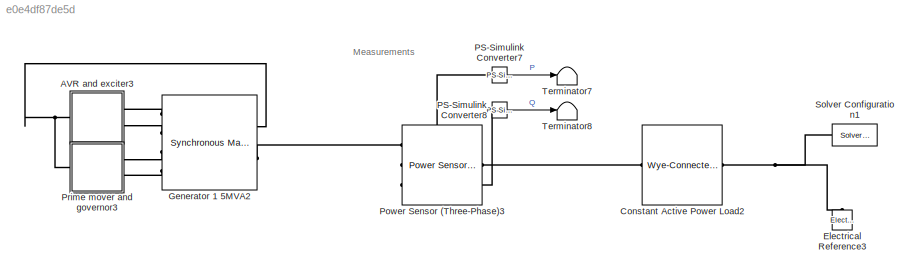
MODEL slx_e0e4df87de5d
KIND model
CONFIG AbsTol = auto
CONFIG EnableMultiTasking = off
CONFIG FixedStep = auto
CONFIG MaxStep = auto
CONFIG MinStep = auto
CONFIG RelTol = 1e-3
CONFIG SampleTimeConstraint = Unconstrained
CONFIG SolverName = VariableStepAuto
CONFIG StartTime = 0.1
CONFIG StopTime = 50
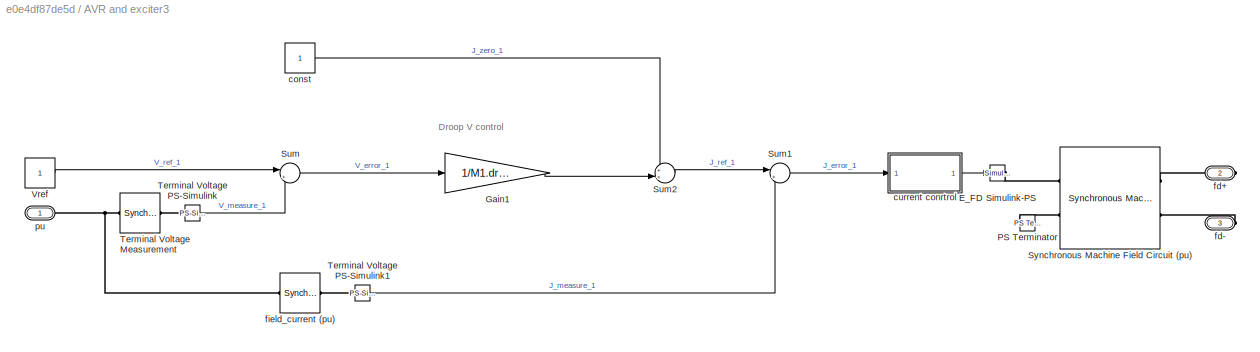
BLOCK [SubSystem] AVR and exciter3
  NameLocation = top
  Ports = [0, 0, 0, 0, 0, 1, 2]
BLOCK [Reference] AVR and exciter3/E_FD Simulink-PS   REF=nesl_utility/Simulink-PS
Converter
  Ports = [1, 0, 0, 0, 0, 0, 1]
  SourceBlock = nesl_utility/Simulink-PS\nConverter
  SourceType = Simulink-PS\nConverter
BLOCK [Gain] AVR and exciter3/Gain1
  Gain = 1/M1.droopV1
BLOCK [Reference] AVR and exciter3/PS Terminator  REF=fl_lib/Physical Signals/Sinks/PS Terminator
  NameLocation = top
  Ports = [0, 0, 0, 0, 0, 1]
  SourceBlock = fl_lib/Physical Signals/Sinks/PS Terminator
  SourceType = PS Terminator
BLOCK [Sum] AVR and exciter3/Sum
  Inputs = |+-
  Ports = [2, 1]
BLOCK [Sum] AVR and exciter3/Sum1
  Inputs = |+-
  Ports = [2, 1]
BLOCK [Sum] AVR and exciter3/Sum2
  Inputs = ++|
  Ports = [2, 1]
BLOCK [Reference] AVR and exciter3/Synchronous Machine Field Circuit (pu)  REF=ee_lib/Electromechanical/Synchronous/Synchronous Machine
Field Circuit
  Ports = [0, 0, 0, 0, 0, 2, 2]
  SourceBlock = ee_lib/Electromechanical/Synchronous/Synchronous Machine\nField Circuit
  SourceType = Synchronous Machine\nField Circuit
BLOCK [Reference] AVR and exciter3/Terminal Voltage Measurement  REF=ee_lib/Electromechanical/Synchronous/Synchronous Machine
Measurement
  Ports = [0, 0, 0, 0, 0, 1, 1]
  SourceBlock = ee_lib/Electromechanical/Synchronous/Synchronous Machine\nMeasurement
  SourceType = Synchronous Machine\nMeasurement
BLOCK [Reference] AVR and exciter3/Terminal Voltage PS-Simulink  REF=nesl_utility/PS-Simulink
Converter
  Ports = [0, 1, 0, 0, 0, 1]
  SourceBlock = nesl_utility/PS-Simulink\nConverter
  SourceType = PS-Simulink\nConverter
BLOCK [Reference] AVR and exciter3/Terminal Voltage PS-Simulink1  REF=nesl_utility/PS-Simulink
Converter
  Ports = [0, 1, 0, 0, 0, 1]
  SourceBlock = nesl_utility/PS-Simulink\nConverter
  SourceType = PS-Simulink\nConverter
BLOCK [Constant] AVR and exciter3/Vref
  NameLocation = top
BLOCK [Constant] AVR and exciter3/const
  NameLocation = top
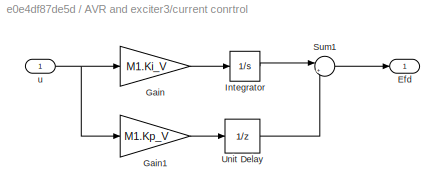
BLOCK [SubSystem] AVR and exciter3/current conrtrol
  Ports = [1, 1]
BLOCK [Outport] AVR and exciter3/current conrtrol/Efd
BLOCK [Gain] AVR and exciter3/current conrtrol/Gain
  Gain = M1.Ki_V
BLOCK [Gain] AVR and exciter3/current conrtrol/Gain1
  Gain = M1.Kp_V
BLOCK [Integrator] AVR and exciter3/current conrtrol/Integrator
  Ports = [1, 1]
BLOCK [Sum] AVR and exciter3/current conrtrol/Sum1
  Inputs = |++
  Ports = [2, 1]
BLOCK [UnitDelay] AVR and exciter3/current conrtrol/Unit Delay
  HasFrameUpgradeWarning = on
  InitialCondition = 1
  SampleTime = -1
BLOCK [Inport] AVR and exciter3/current conrtrol/u
BLOCK [PMIOPort] AVR and exciter3/fd+
  Port = 2
  Side = Right
BLOCK [PMIOPort] AVR and exciter3/fd-
  Port = 3
  Side = Right
BLOCK [Reference] AVR and exciter3/field_current (pu)  REF=ee_lib/Electromechanical/Synchronous/Synchronous Machine
Measurement
  Ports = [0, 0, 0, 0, 0, 1, 1]
  SourceBlock = ee_lib/Electromechanical/Synchronous/Synchronous Machine\nMeasurement
  SourceType = Synchronous Machine\nMeasurement
BLOCK [PMIOPort] AVR and exciter3/pu
  Side = Left
BLOCK [Reference] Constant Active Power Load2  REF=ee_lib/Passive/RLC Assemblies/Wye-Connected Load
  Ports = [0, 0, 0, 0, 0, 1, 1]
  SourceBlock = ee_lib/Passive/RLC Assemblies/Wye-Connected Load
  SourceType = Wye-Connected Load
BLOCK [Reference] Electrical Reference3  REF=fl_lib/Electrical/Electrical Elements/Electrical Reference
  NameLocation = right
  Ports = [0, 0, 0, 0, 0, 1]
  SourceBlock = fl_lib/Electrical/Electrical Elements/Electrical Reference
  SourceType = Electrical Reference
BLOCK [Reference] Generator 1 5MVA2  REF=ee_lib/Electromechanical/Synchronous/Synchronous Machine
Salient Pole
  Ports = [0, 0, 0, 0, 0, 4, 2]
  SourceBlock = ee_lib/Electromechanical/Synchronous/Synchronous Machine\nSalient Pole
  SourceType = Synchronous Machine\nSalient Pole
BLOCK [Reference] PS-Simulink Converter7  REF=nesl_utility/PS-Simulink
Converter
  Ports = [0, 1, 0, 0, 0, 1]
  SourceBlock = nesl_utility/PS-Simulink\nConverter
  SourceType = PS-Simulink\nConverter
BLOCK [Reference] PS-Simulink Converter8  REF=nesl_utility/PS-Simulink
Converter
  Ports = [0, 1, 0, 0, 0, 1]
  SourceBlock = nesl_utility/PS-Simulink\nConverter
  SourceType = PS-Simulink\nConverter
BLOCK [Reference] Power Sensor (Three-Phase)3  REF=ee_lib/Sensors &
Transducers/Power Sensor
(Three-Phase)
  Ports = [0, 0, 0, 0, 0, 3, 1]
  SourceBlock = ee_lib/Sensors &\nTransducers/Power Sensor\n(Three-Phase)
  SourceType = Power Sensor\n(Three-Phase)
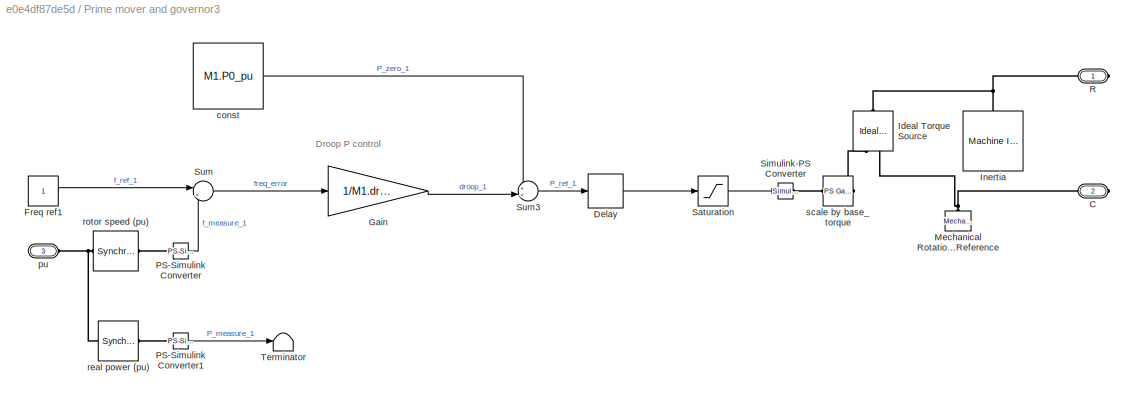
BLOCK [SubSystem] Prime mover and governor3
  Ports = [0, 0, 0, 0, 0, 1, 2]
BLOCK [PMIOPort] Prime mover and governor3/C
  Port = 2
  Side = Right
BLOCK [Delay] Prime mover and governor3/Delay
  DelayLength = 1
  InputPortMap = u0
  Ports = [1, 1]
BLOCK [Constant] Prime mover and governor3/Freq ref1
  NameLocation = top
BLOCK [Gain] Prime mover and governor3/Gain
  Gain = 1/M1.droopP1
BLOCK [Reference] Prime mover and governor3/Ideal Torque Source  REF=fl_lib/Mechanical/Mechanical Sources/Ideal Torque Source
  NameLocation = left
  Ports = [0, 0, 0, 0, 0, 1, 2]
  SourceBlock = fl_lib/Mechanical/Mechanical Sources/Ideal Torque Source
  SourceType = Ideal Torque Source
BLOCK [Reference] Prime mover and governor3/Inertia  REF=ee_lib/Electromechanical/Mechanical/Machine
Inertia
  NameLocation = right
  Ports = [0, 0, 0, 0, 0, 1]
  SourceBlock = ee_lib/Electromechanical/Mechanical/Machine\nInertia
  SourceType = Machine\nInertia
BLOCK [Reference] Prime mover and governor3/Mechanical Rotational Reference  REF=fl_lib/Mechanical/Rotational Elements/Mechanical
Rotational Reference
  NameLocation = right
  Ports = [0, 0, 0, 0, 0, 1]
  SourceBlock = fl_lib/Mechanical/Rotational Elements/Mechanical\nRotational Reference
  SourceType = Mechanical\nRotational Reference
BLOCK [Reference] Prime mover and governor3/PS-Simulink Converter  REF=nesl_utility/PS-Simulink
Converter
  Ports = [0, 1, 0, 0, 0, 1]
  SourceBlock = nesl_utility/PS-Simulink\nConverter
  SourceType = PS-Simulink\nConverter
BLOCK [Reference] Prime mover and governor3/PS-Simulink Converter1  REF=nesl_utility/PS-Simulink
Converter
  Ports = [0, 1, 0, 0, 0, 1]
  SourceBlock = nesl_utility/PS-Simulink\nConverter
  SourceType = PS-Simulink\nConverter
BLOCK [PMIOPort] Prime mover and governor3/R
  Side = Right
BLOCK [Saturate] Prime mover and governor3/Saturation
  LowerLimit = 0
  UpperLimit = 1
BLOCK [Reference] Prime mover and governor3/Simulink-PS Converter  REF=nesl_utility/Simulink-PS
Converter
  NameLocation = top
  Ports = [1, 0, 0, 0, 0, 0, 1]
  SourceBlock = nesl_utility/Simulink-PS\nConverter
  SourceType = Simulink-PS\nConverter
BLOCK [Sum] Prime mover and governor3/Sum
  Inputs = |+-
  NameLocation = top
  Ports = [2, 1]
BLOCK [Sum] Prime mover and governor3/Sum3
  Inputs = ++|
  Ports = [2, 1]
BLOCK [Terminator] Prime mover and governor3/Terminator
BLOCK [Constant] Prime mover and governor3/const
  NameLocation = top
  Value = M1.P0_pu
BLOCK [PMIOPort] Prime mover and governor3/pu
  Port = 3
  Side = Left
BLOCK [Reference] Prime mover and governor3/real power (pu)  REF=ee_lib/Electromechanical/Synchronous/Synchronous Machine
Measurement
  Ports = [0, 0, 0, 0, 0, 1, 1]
  SourceBlock = ee_lib/Electromechanical/Synchronous/Synchronous Machine\nMeasurement
  SourceType = Synchronous Machine\nMeasurement
BLOCK [Reference] Prime mover and governor3/rotor speed (pu)  REF=ee_lib/Electromechanical/Synchronous/Synchronous Machine
Measurement
  Ports = [0, 0, 0, 0, 0, 1, 1]
  SourceBlock = ee_lib/Electromechanical/Synchronous/Synchronous Machine\nMeasurement
  SourceType = Synchronous Machine\nMeasurement
BLOCK [Reference] Prime mover and governor3/scale by base_torque  REF=fl_lib/Physical Signals/Functions/PS Gain
  Ports = [0, 0, 0, 0, 0, 1, 1]
  SourceBlock = fl_lib/Physical Signals/Functions/PS Gain
  SourceType = PS Gain
BLOCK [Reference] Solver Configuration1  REF=nesl_utility/Solver
Configuration
  Ports = [0, 0, 0, 0, 0, 0, 1]
  SourceBlock = nesl_utility/Solver\nConfiguration
  SourceType = Solver\nConfiguration
BLOCK [Terminator] Terminator7
BLOCK [Terminator] Terminator8
ANNOTATION (root): Measurements
ANNOTATION AVR and exciter3: Droop V control
ANNOTATION Prime mover and governor3: Droop P control
LINE AVR and exciter3/Gain1:1 -> AVR and exciter3/Sum2:2
LINE AVR and exciter3/Sum1:1 -> AVR and exciter3/current conrtrol:1
LINE AVR and exciter3/Sum2:1 -> AVR and exciter3/Sum1:1
LINE AVR and exciter3/Sum:1 -> AVR and exciter3/Gain1:1
LINE AVR and exciter3/Terminal Voltage PS-Simulink1:1 -> AVR and exciter3/Sum1:2
LINE AVR and exciter3/Terminal Voltage PS-Simulink:1 -> AVR and exciter3/Sum:2
LINE AVR and exciter3/Vref:1 -> AVR and exciter3/Sum:1
LINE AVR and exciter3/const:1 -> AVR and exciter3/Sum2:1
LINE AVR and exciter3/current conrtrol/Gain1:1 -> AVR and exciter3/current conrtrol/Unit Delay:1
LINE AVR and exciter3/current conrtrol/Gain:1 -> AVR and exciter3/current conrtrol/Integrator:1
LINE AVR and exciter3/current conrtrol/Integrator:1 -> AVR and exciter3/current conrtrol/Sum1:1
LINE AVR and exciter3/current conrtrol/Sum1:1 -> AVR and exciter3/current conrtrol/Efd:1
LINE AVR and exciter3/current conrtrol/Unit Delay:1 -> AVR and exciter3/current conrtrol/Sum1:2
NET AVR and exciter3/current conrtrol/u:1 -> AVR and exciter3/current conrtrol/Gain1:1, AVR and exciter3/current conrtrol/Gain:1
LINE AVR and exciter3/current conrtrol:1 -> AVR and exciter3/E_FD Simulink-PS :1
LINE PS-Simulink Converter7:1 -> Terminator7:1
LINE PS-Simulink Converter8:1 -> Terminator8:1
LINE Prime mover and governor3/Delay:1 -> Prime mover and governor3/Saturation:1
LINE Prime mover and governor3/Freq ref1:1 -> Prime mover and governor3/Sum:1
LINE Prime mover and governor3/Gain:1 -> Prime mover and governor3/Sum3:2
LINE Prime mover and governor3/PS-Simulink Converter1:1 -> Prime mover and governor3/Terminator:1
LINE Prime mover and governor3/PS-Simulink Converter:1 -> Prime mover and governor3/Sum:2
LINE Prime mover and governor3/Saturation:1 -> Prime mover and governor3/Simulink-PS Converter:1
LINE Prime mover and governor3/Sum3:1 -> Prime mover and governor3/Delay:1
LINE Prime mover and governor3/Sum:1 -> Prime mover and governor3/Gain:1
LINE Prime mover and governor3/const:1 -> Prime mover and governor3/Sum3:1
PLINE AVR and exciter3/E_FD Simulink-PS :RConn1 -- AVR and exciter3/Synchronous Machine Field Circuit (pu):LConn1
PLINE AVR and exciter3/PS Terminator:LConn1 -- AVR and exciter3/Synchronous Machine Field Circuit (pu):LConn2
PLINE AVR and exciter3/Synchronous Machine Field Circuit (pu):RConn1 -- AVR and exciter3/fd+:RConn1
PLINE AVR and exciter3/Synchronous Machine Field Circuit (pu):RConn2 -- AVR and exciter3/fd-:RConn1
PNET net1: AVR and exciter3/Terminal Voltage Measurement:LConn1 -- AVR and exciter3/field_current (pu):LConn1 -- AVR and exciter3/pu:RConn1
PLINE AVR and exciter3/Terminal Voltage Measurement:RConn1 -- AVR and exciter3/Terminal Voltage PS-Simulink:LConn1
PLINE AVR and exciter3/Terminal Voltage PS-Simulink1:LConn1 -- AVR and exciter3/field_current (pu):RConn1
PNET net2: AVR and exciter3:LConn1 -- Generator 1 5MVA2:RConn1 -- Prime mover and governor3:LConn1
PLINE AVR and exciter3:RConn1 -- Generator 1 5MVA2:LConn1
PLINE AVR and exciter3:RConn2 -- Generator 1 5MVA2:LConn2
PLINE Constant Active Power Load2:LConn1 -- Power Sensor (Three-Phase)3:RConn1
PNET net3: Constant Active Power Load2:RConn1 -- Electrical Reference3:LConn1 -- Solver Configuration1:RConn1
PLINE Generator 1 5MVA2:LConn3 -- Prime mover and governor3:RConn1
PLINE Generator 1 5MVA2:LConn4 -- Prime mover and governor3:RConn2
PLINE Generator 1 5MVA2:RConn2 -- Power Sensor (Three-Phase)3:LConn1
PLINE PS-Simulink Converter7:LConn1 -- Power Sensor (Three-Phase)3:LConn2
PLINE PS-Simulink Converter8:LConn1 -- Power Sensor (Three-Phase)3:LConn3
PNET net4: Prime mover and governor3/C:RConn1 -- Prime mover and governor3/Ideal Torque Source:RConn2 -- Prime mover and governor3/Mechanical Rotational Reference:LConn1
PNET net5: Prime mover and governor3/Ideal Torque Source:LConn1 -- Prime mover and governor3/Inertia:LConn1 -- Prime mover and governor3/R:RConn1
PLINE Prime mover and governor3/Ideal Torque Source:RConn1 -- Prime mover and governor3/scale by base_torque:RConn1
PLINE Prime mover and governor3/PS-Simulink Converter1:LConn1 -- Prime mover and governor3/real power (pu):RConn1
PLINE Prime mover and governor3/PS-Simulink Converter:LConn1 -- Prime mover and governor3/rotor speed (pu):RConn1
PLINE Prime mover and governor3/Simulink-PS Converter:RConn1 -- Prime mover and governor3/scale by base_torque:LConn1
PNET net6: Prime mover and governor3/pu:RConn1 -- Prime mover and governor3/real power (pu):LConn1 -- Prime mover and governor3/rotor speed (pu):LConn1
note: NET lines group one-source signal fan-out (src -> all destinations, sorted); 1:1 wires keep LINE; PNET lines group multi-terminal physical nets as a canonical sorted terminal list (undirected conserving connections); 2-terminal nets keep the pairwise PLINE form
